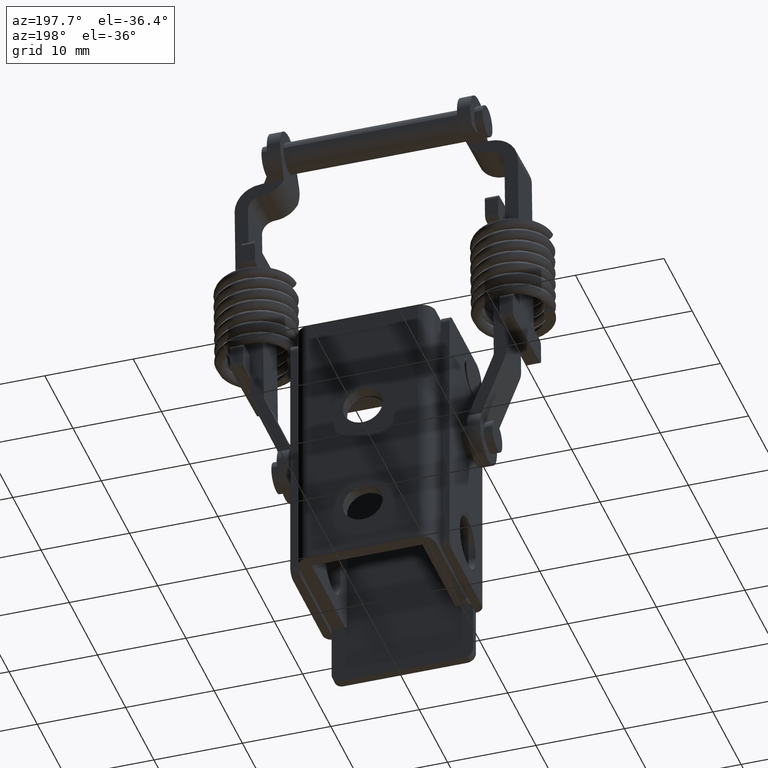
[diagram: clean part render]
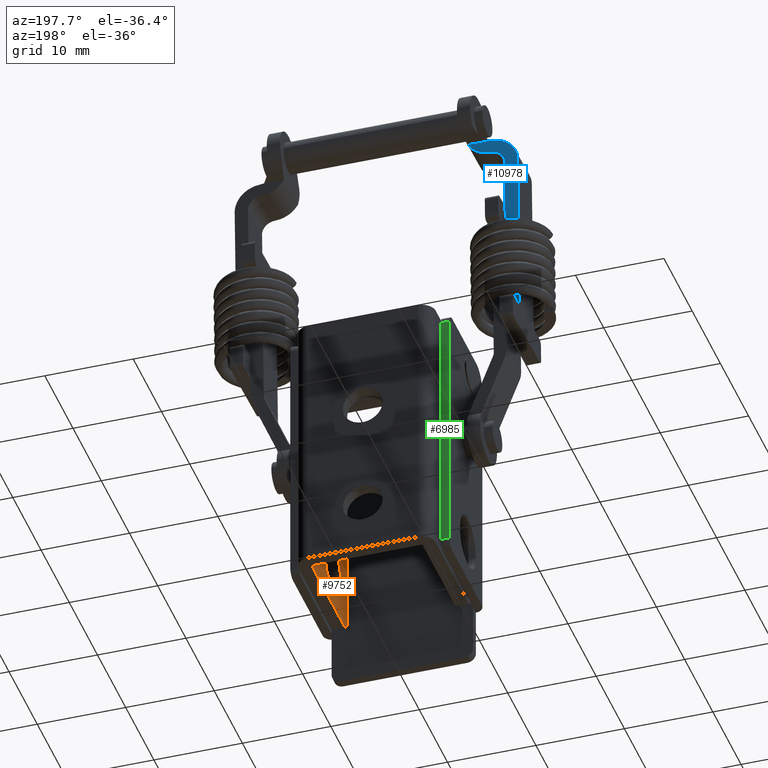
[diagram: same view with three faces highlighted in distinct colors, each labeled with its STEP entity id]
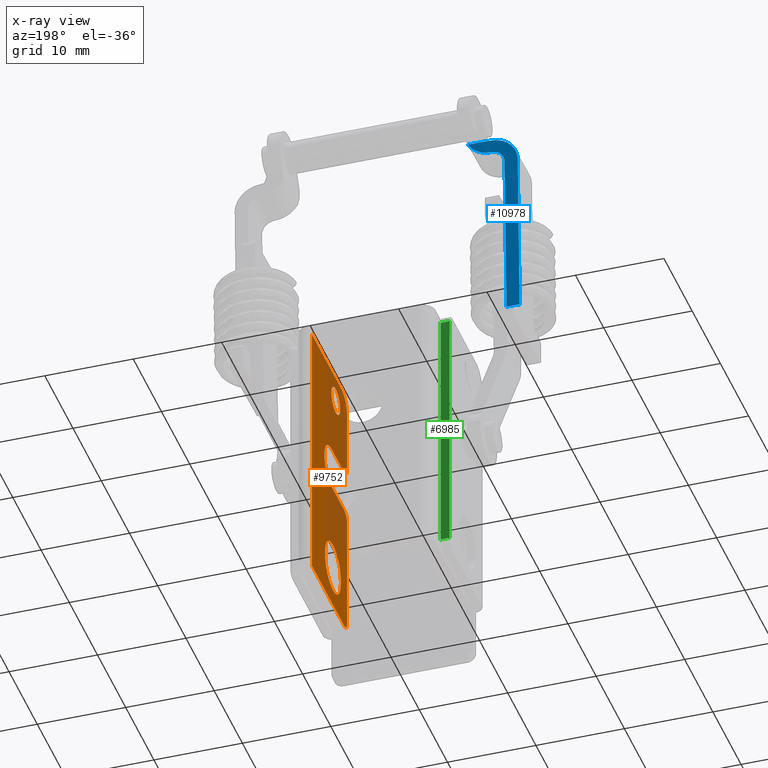
[diagram: x-ray of the same camera — body ghosted, the three highlighted faces saturated]
A machine part, auxiliary view with three faces highlighted in distinct colors.
The next image is the same camera in x-ray (body ghosted, the three faces saturated) — at least one of them is partly hidden behind the body in this view.
Their STEP definitions:

[orange] entity #9752 — the highlighted face is a freeform B-spline surface patch.
#7967=CARTESIAN_POINT('',(6.249999999927042,-8.461987368572737,8.807601596782856));
#7968=VERTEX_POINT('',#7967);
#7969=CARTESIAN_POINT('',(6.249999999927041,-10.0,7.450000000025149));
#7970=VERTEX_POINT('',#7969);
#7971=CARTESIAN_POINT('',(6.249999999927042,-8.461987368572737,8.807601596782856));
#7972=CARTESIAN_POINT('',(6.249999999927040,-8.631817169800423,7.450000000025150));
#7973=CARTESIAN_POINT('',(6.249999999927041,-10.0,7.450000000025149));
#7981=(BOUNDED_CURVE()B_SPLINE_CURVE(2,(#7971,#7972,#7973),.UNSPECIFIED.,.F.,.U.)B_SPLINE_CURVE_WITH_KNOTS((3,3),(0.771473928974771,1.0),.UNSPECIFIED.)CURVE()GEOMETRIC_REPRESENTATION_ITEM()RATIONAL_B_SPLINE_CURVE((0.954005430266821,0.732265053898516,1.0))REPRESENTATION_ITEM(''));
#7982=EDGE_CURVE('',#7968,#7970,#7981,.T.);
#7984=CARTESIAN_POINT('',(6.249999999927041,-11.549940980746349,9.013526130404305));
#7985=VERTEX_POINT('',#7984);
#7986=CARTESIAN_POINT('',(6.249999999927041,-10.0,7.450000000025149));
#7987=CARTESIAN_POINT('',(6.249999999927042,-11.549999999999999,7.450000000025150));
#7988=CARTESIAN_POINT('',(6.249999999927041,-11.550000000000001,9.000000000025150));
#7989=CARTESIAN_POINT('',(6.249999999927041,-11.549999999999995,9.006763194153933));
#7990=CARTESIAN_POINT('',(6.249999999927041,-11.549940980746355,9.013526130404305));
#7998=(BOUNDED_CURVE()B_SPLINE_CURVE(2,(#7986,#7987,#7988,#7989,#7990),.UNSPECIFIED.,.F.,.U.)B_SPLINE_CURVE_WITH_KNOTS((3,2,3),(0.0,0.250000000000000,0.251539894416056),.UNSPECIFIED.)CURVE()GEOMETRIC_REPRESENTATION_ITEM()RATIONAL_B_SPLINE_CURVE((1.0,0.707106781186547,1.0,0.998195901471394,0.996414027912790))REPRESENTATION_ITEM(''));
#7999=EDGE_CURVE('',#7970,#7985,#7998,.T.);
#8070=CARTESIAN_POINT('',(6.249999999927041,-10.0,10.550000000025150));
#8071=VERTEX_POINT('',#8070);
#8072=CARTESIAN_POINT('',(6.249999999927041,-10.0,10.550000000025150));
#8073=CARTESIAN_POINT('',(6.249999999927042,-8.450000000000001,10.550000000025149));
#8074=CARTESIAN_POINT('',(6.249999999927041,-8.450000000000001,9.000000000025150));
#8075=CARTESIAN_POINT('',(6.249999999927041,-8.450000000000001,8.903427362329461));
#8076=CARTESIAN_POINT('',(6.249999999927042,-8.461987368572737,8.807601596782854));
#8084=(BOUNDED_CURVE()B_SPLINE_CURVE(2,(#8072,#8073,#8074,#8075,#8076),.UNSPECIFIED.,.F.,.U.)B_SPLINE_CURVE_WITH_KNOTS((3,2,3),(0.500000000000000,0.750000000000000,0.771473928974770),.UNSPECIFIED.)CURVE()GEOMETRIC_REPRESENTATION_ITEM()RATIONAL_B_SPLINE_CURVE((1.0,0.707106781186547,1.0,0.974841727288032,0.954005430266822))REPRESENTATION_ITEM(''));
#8085=EDGE_CURVE('',#8071,#7968,#8084,.T.);
#8119=CARTESIAN_POINT('',(6.249999999927041,-11.549940980746355,9.013526130404305));
#8120=CARTESIAN_POINT('',(6.249999999927041,-11.536532375715009,10.550000000025149));
#8121=CARTESIAN_POINT('',(6.249999999927041,-10.0,10.550000000025150));
#8129=(BOUNDED_CURVE()B_SPLINE_CURVE(2,(#8119,#8120,#8121),.UNSPECIFIED.,.F.,.U.)B_SPLINE_CURVE_WITH_KNOTS((3,3),(0.251539894416056,0.500000000000000),.UNSPECIFIED.)CURVE()GEOMETRIC_REPRESENTATION_ITEM()RATIONAL_B_SPLINE_CURVE((0.996414027912790,0.708910879715153,1.0))REPRESENTATION_ITEM(''));
#8130=EDGE_CURVE('',#7985,#8071,#8129,.T.);
#8335=CARTESIAN_POINT('',(6.249999999927041,-6.250000000000000,-14.249997936925640));
#8336=VERTEX_POINT('',#8335);
#8337=CARTESIAN_POINT('',(6.249999999927041,-11.750000000000121,-14.249997936925940));
#8338=VERTEX_POINT('',#8337);
#8339=CARTESIAN_POINT('',(6.249999999927041,-6.249999999999999,-14.249997936925640));
#8340=CARTESIAN_POINT('',(6.249999999927041,-6.249999999999998,-16.999997936925642));
#8341=CARTESIAN_POINT('',(6.249999999927041,-9.0,-16.999997936925642));
#8342=CARTESIAN_POINT('',(6.249999999927041,-11.749999999999698,-16.999997936925642));
#8343=CARTESIAN_POINT('',(6.249999999927041,-11.750000000000121,-14.249997936925940));
#8351=(BOUNDED_CURVE()B_SPLINE_CURVE(2,(#8339,#8340,#8341,#8342,#8343),.UNSPECIFIED.,.F.,.U.)B_SPLINE_CURVE_WITH_KNOTS((3,2,3),(0.0,0.500000000000000,1.0),.UNSPECIFIED.)CURVE()GEOMETRIC_REPRESENTATION_ITEM()RATIONAL_B_SPLINE_CURVE((1.0,0.707106781186548,1.0,0.707106781186548,1.0))REPRESENTATION_ITEM(''));
#8352=EDGE_CURVE('',#8336,#8338,#8351,.T.);
#8391=CARTESIAN_POINT('',(6.249999999927041,-11.750000000000000,-13.749997936925640));
#8392=VERTEX_POINT('',#8391);
#8393=CARTESIAN_POINT('',(6.249999999927041,-11.750000000000121,-14.249997936925940));
#8394=CARTESIAN_POINT('',(6.249999999927041,-11.750000000000000,-13.749997936925640));
#8395=QUASI_UNIFORM_CURVE('',1,(#8393,#8394),.UNSPECIFIED.,.F.,.U.);
#8396=EDGE_CURVE('',#8338,#8392,#8395,.T.);
#8432=CARTESIAN_POINT('',(6.249999999927041,-6.250000000000000,-13.749997936925640));
#8433=VERTEX_POINT('',#8432);
#8434=CARTESIAN_POINT('',(6.249999999927041,-11.750000000000000,-13.749997936925640));
#8435=CARTESIAN_POINT('',(6.249999999927041,-11.750000000000002,-10.999997936925642));
#8436=CARTESIAN_POINT('',(6.249999999927041,-9.0,-10.999997936925640));
#8437=CARTESIAN_POINT('',(6.249999999927041,-6.249999999999998,-10.999997936925642));
#8438=CARTESIAN_POINT('',(6.249999999927041,-6.249999999999999,-13.749997936925640));
#8446=(BOUNDED_CURVE()B_SPLINE_CURVE(2,(#8434,#8435,#8436,#8437,#8438),.UNSPECIFIED.,.F.,.U.)B_SPLINE_CURVE_WITH_KNOTS((3,2,3),(0.0,0.500000000000000,1.0),.UNSPECIFIED.)CURVE()GEOMETRIC_REPRESENTATION_ITEM()RATIONAL_B_SPLINE_CURVE((1.0,0.707106781186548,1.0,0.707106781186548,1.0))REPRESENTATION_ITEM(''));
#8447=EDGE_CURVE('',#8392,#8433,#8446,.T.);
#8480=CARTESIAN_POINT('',(6.249999999927041,-6.250000000000000,-13.749997936925640));
#8481=CARTESIAN_POINT('',(6.249999999927041,-6.250000000000000,-14.249997936925640));
#8482=QUASI_UNIFORM_CURVE('',1,(#8480,#8481),.UNSPECIFIED.,.F.,.U.);
#8483=EDGE_CURVE('',#8433,#8336,#8482,.T.);
#8870=CARTESIAN_POINT('',(6.249999999927010,-13.0,-18.999997936926700));
#8871=VERTEX_POINT('',#8870);
#8872=CARTESIAN_POINT('',(6.249999999927010,-14.0,-17.999999999983849));
#8873=VERTEX_POINT('',#8872);
#8874=CARTESIAN_POINT('',(6.249999999927010,-13.0,-18.999997936926700));
#8875=CARTESIAN_POINT('',(6.249999999927010,-13.999999999999998,-18.999998968455284));
#8876=CARTESIAN_POINT('',(6.249999999927010,-14.0,-17.999999999983849));
#8884=(BOUNDED_CURVE()B_SPLINE_CURVE(2,(#8874,#8875,#8876),.UNSPECIFIED.,.F.,.U.)CURVE()GEOMETRIC_REPRESENTATION_ITEM()QUASI_UNIFORM_CURVE()RATIONAL_B_SPLINE_CURVE((1.0,0.707106781186548,1.0))REPRESENTATION_ITEM(''));
#8885=EDGE_CURVE('',#8871,#8873,#8884,.T.);
#8931=CARTESIAN_POINT('',(6.249999999927010,-13.0,1.500000000024955));
#8932=VERTEX_POINT('',#8931);
#8933=CARTESIAN_POINT('',(6.249999999927010,-14.0,2.500000000024955));
#8934=VERTEX_POINT('',#8933);
#8935=CARTESIAN_POINT('',(6.249999999927041,-13.0,1.500000000024955));
#8936=CARTESIAN_POINT('',(6.249999999927041,-13.999999999999998,1.500000000024955));
#8937=CARTESIAN_POINT('',(6.249999999927041,-14.0,2.500000000024955));
#8945=(BOUNDED_CURVE()B_SPLINE_CURVE(2,(#8935,#8936,#8937),.UNSPECIFIED.,.F.,.U.)CURVE()GEOMETRIC_REPRESENTATION_ITEM()QUASI_UNIFORM_CURVE()RATIONAL_B_SPLINE_CURVE((1.0,0.707106781186548,1.0))REPRESENTATION_ITEM(''));
#8946=EDGE_CURVE('',#8932,#8934,#8945,.T.);
#8992=CARTESIAN_POINT('',(6.249999999927010,-14.0,-4.499999999975045));
#8993=VERTEX_POINT('',#8992);
#8994=CARTESIAN_POINT('',(6.249999999927010,-13.0,-3.499999999975045));
#8995=VERTEX_POINT('',#8994);
#8996=CARTESIAN_POINT('',(6.249999999927041,-14.0,-4.499999999975045));
#8997=CARTESIAN_POINT('',(6.249999999927041,-13.999999999999998,-3.499999999975045));
#8998=CARTESIAN_POINT('',(6.249999999927041,-13.0,-3.499999999975045));
#9006=(BOUNDED_CURVE()B_SPLINE_CURVE(2,(#8996,#8997,#8998),.UNSPECIFIED.,.F.,.U.)CURVE()GEOMETRIC_REPRESENTATION_ITEM()QUASI_UNIFORM_CURVE()RATIONAL_B_SPLINE_CURVE((1.0,0.707106781186548,1.0))REPRESENTATION_ITEM(''));
#9007=EDGE_CURVE('',#8993,#8995,#9006,.T.);
#9236=CARTESIAN_POINT('',(6.249999999927010,-14.0,10.000000000016181));
#9237=VERTEX_POINT('',#9236);
#9238=CARTESIAN_POINT('',(6.249999999927010,-12.0,12.000002063073159));
#9239=VERTEX_POINT('',#9238);
#9240=CARTESIAN_POINT('',(6.249999999927010,-14.0,10.000000000016181));
#9241=CARTESIAN_POINT('',(6.249999999927010,-13.999999999999998,12.000001031544672));
#9242=CARTESIAN_POINT('',(6.249999999927010,-12.0,12.000002063073159));
#9250=(BOUNDED_CURVE()B_SPLINE_CURVE(2,(#9240,#9241,#9242),.UNSPECIFIED.,.F.,.U.)CURVE()GEOMETRIC_REPRESENTATION_ITEM()QUASI_UNIFORM_CURVE()RATIONAL_B_SPLINE_CURVE((1.0,0.707106781186548,1.0))REPRESENTATION_ITEM(''));
#9251=EDGE_CURVE('',#9237,#9239,#9250,.T.);
#9441=CARTESIAN_POINT('',(6.249999999927041,-8.499999999999831,-3.499999999974750));
#9442=VERTEX_POINT('',#9441);
#9443=CARTESIAN_POINT('',(6.249999999927041,-8.499999999999831,-3.499999999974750));
#9444=CARTESIAN_POINT('',(6.249999999927010,-13.0,-3.499999999975045));
#9445=QUASI_UNIFORM_CURVE('',1,(#9443,#9444),.UNSPECIFIED.,.F.,.U.);
#9446=EDGE_CURVE('',#9442,#8995,#9445,.T.);
#9501=CARTESIAN_POINT('',(6.249999999927041,-8.504542080552580,1.500000000025255));
#9502=VERTEX_POINT('',#9501);
#9508=CARTESIAN_POINT('',(6.249999999927041,-8.499999999999831,-3.499999999974750));
#9509=CARTESIAN_POINT('',(6.249999999927041,-7.055613607613158,-3.499999999974748));
#9510=CARTESIAN_POINT('',(6.249999999927041,-6.334178087124111,-2.248687552866123));
#9511=CARTESIAN_POINT('',(6.249999999927041,-5.612742566635067,-0.997375105757498));
#9512=CARTESIAN_POINT('',(6.249999999927041,-6.336450319335711,0.252624549919759));
#9513=CARTESIAN_POINT('',(6.249999999927041,-7.060158072036358,1.502624205597015));
#9514=CARTESIAN_POINT('',(6.249999999927041,-8.504542080552580,1.500000000025253));
#9522=(BOUNDED_CURVE()B_SPLINE_CURVE(2,(#9508,#9509,#9510,#9511,#9512,#9513,#9514),.UNSPECIFIED.,.F.,.U.)B_SPLINE_CURVE_WITH_KNOTS((3,2,2,3),(0.0,0.333333333333333,0.666666666666667,1.0),.UNSPECIFIED.)CURVE()GEOMETRIC_REPRESENTATION_ITEM()RATIONAL_B_SPLINE_CURVE((1.0,0.865873961439928,1.0,0.865873961439928,1.0,0.865873961439928,1.0))REPRESENTATION_ITEM(''));
#9523=EDGE_CURVE('',#9442,#9502,#9522,.T.);
#9540=CARTESIAN_POINT('',(6.249999999927010,-13.0,1.500000000024955));
#9541=CARTESIAN_POINT('',(6.249999999927041,-8.504542080552580,1.500000000025255));
#9542=QUASI_UNIFORM_CURVE('',1,(#9540,#9541),.UNSPECIFIED.,.F.,.U.);
#9543=EDGE_CURVE('',#8932,#9502,#9542,.T.);
#9554=CARTESIAN_POINT('',(6.249999999927010,-14.0,10.000000000016181));
#9555=CARTESIAN_POINT('',(6.249999999927010,-14.0,2.500000000024955));
#9556=QUASI_UNIFORM_CURVE('',1,(#9554,#9555),.UNSPECIFIED.,.F.,.U.);
#9557=EDGE_CURVE('',#9237,#8934,#9556,.T.);
#9580=CARTESIAN_POINT('',(6.249999999927010,-14.0,-4.499999999975045));
#9581=CARTESIAN_POINT('',(6.249999999927010,-14.0,-17.999999999983849));
#9582=QUASI_UNIFORM_CURVE('',1,(#9580,#9581),.UNSPECIFIED.,.F.,.U.);
#9583=EDGE_CURVE('',#8993,#8873,#9582,.T.);
#9606=CARTESIAN_POINT('',(6.249999999927010,-1.499999999999946,-18.999999999983849));
#9607=VERTEX_POINT('',#9606);
#9608=CARTESIAN_POINT('',(6.249999999927010,-13.0,-18.999997936926700));
#9609=CARTESIAN_POINT('',(6.249999999927010,-1.499999999999946,-18.999999999983849));
#9610=QUASI_UNIFORM_CURVE('',1,(#9608,#9609),.UNSPECIFIED.,.F.,.U.);
#9611=EDGE_CURVE('',#8871,#9607,#9610,.T.);
#9665=CARTESIAN_POINT('',(6.249999999927010,-1.499999999999946,12.000000000016181));
#9666=VERTEX_POINT('',#9665);
#9672=CARTESIAN_POINT('',(6.249999999927010,-1.499999999999946,12.000000000016181));
#9673=CARTESIAN_POINT('',(6.249999999927010,-12.0,12.000002063073159));
#9674=QUASI_UNIFORM_CURVE('',1,(#9672,#9673),.UNSPECIFIED.,.F.,.U.);
#9675=EDGE_CURVE('',#9666,#9239,#9674,.T.);
#9717=CARTESIAN_POINT('',(6.249999999927010,-14.624374975772580,-20.548450042949529));
#9718=CARTESIAN_POINT('',(6.249999999927010,-0.875624688951244,-20.548450042949529));
#9719=CARTESIAN_POINT('',(6.249999999927010,-14.624374975772580,13.548452937523690));
#9720=CARTESIAN_POINT('',(6.249999999927010,-0.875624688951244,13.548452937523690));
#9721=B_SPLINE_SURFACE_WITH_KNOTS('',1,1,((#9717,#9719),(#9718,#9720)),.UNSPECIFIED.,.F.,.F.,.U.,(2,2),(2,2),(0.0,13.748750286821339),(0.0,34.096902980473217),.UNSPECIFIED.);
#9722=ORIENTED_EDGE('',*,*,#9583,.F.);
#9723=ORIENTED_EDGE('',*,*,#9007,.T.);
#9724=ORIENTED_EDGE('',*,*,#9446,.F.);
#9725=ORIENTED_EDGE('',*,*,#9523,.T.);
#9726=ORIENTED_EDGE('',*,*,#9543,.F.);
#9727=ORIENTED_EDGE('',*,*,#8946,.T.);
#9728=ORIENTED_EDGE('',*,*,#9557,.F.);
#9729=ORIENTED_EDGE('',*,*,#9251,.T.);
#9730=ORIENTED_EDGE('',*,*,#9675,.F.);
#9731=CARTESIAN_POINT('',(6.249999999927010,-1.499999999999946,-18.999999999983849));
#9732=CARTESIAN_POINT('',(6.249999999927010,-1.499999999999946,12.000000000016181));
#9733=QUASI_UNIFORM_CURVE('',1,(#9731,#9732),.UNSPECIFIED.,.F.,.U.);
#9734=EDGE_CURVE('',#9607,#9666,#9733,.T.);
#9735=ORIENTED_EDGE('',*,*,#9734,.F.);
#9736=ORIENTED_EDGE('',*,*,#9611,.F.);
#9737=ORIENTED_EDGE('',*,*,#8885,.T.);
#9738=EDGE_LOOP('',(#9722,#9723,#9724,#9725,#9726,#9727,#9728,#9729,#9730,#9735,#9736,#9737));
#9739=FACE_OUTER_BOUND('',#9738,.T.);
#9740=ORIENTED_EDGE('',*,*,#8483,.F.);
#9741=ORIENTED_EDGE('',*,*,#8447,.F.);
#9742=ORIENTED_EDGE('',*,*,#8396,.F.);
#9743=ORIENTED_EDGE('',*,*,#8352,.F.);
#9744=EDGE_LOOP('',(#9740,#9741,#9742,#9743));
#9745=FACE_BOUND('',#9744,.T.);
#9746=ORIENTED_EDGE('',*,*,#7999,.F.);
#9747=ORIENTED_EDGE('',*,*,#7982,.F.);
#9748=ORIENTED_EDGE('',*,*,#8085,.F.);
#9749=ORIENTED_EDGE('',*,*,#8130,.F.);
#9750=EDGE_LOOP('',(#9746,#9747,#9748,#9749));
#9751=FACE_BOUND('',#9750,.T.);
#9752=ADVANCED_FACE('',(#9739,#9745,#9751),#9721,.F.);

[blue] entity #10978 — the highlighted face is a freeform B-spline surface patch.
#10123=CARTESIAN_POINT('',(-12.999999999973021,-4.505187885589310,35.750456453793653));
#10124=VERTEX_POINT('',#10123);
#10130=CARTESIAN_POINT('',(-15.999999999961300,-4.505187885590150,32.750456453793653));
#10131=VERTEX_POINT('',#10130);
#10132=CARTESIAN_POINT('',(-15.999999999961300,-4.505187885590150,32.750456453793653));
#10133=CARTESIAN_POINT('',(-15.999999999961302,-4.505187885589310,35.750456453781929));
#10134=CARTESIAN_POINT('',(-12.999999999973021,-4.505187885589310,35.750456453793653));
#10142=(BOUNDED_CURVE()B_SPLINE_CURVE(2,(#10132,#10133,#10134),.UNSPECIFIED.,.F.,.U.)CURVE()GEOMETRIC_REPRESENTATION_ITEM()QUASI_UNIFORM_CURVE()RATIONAL_B_SPLINE_CURVE((1.0,0.707106781187929,1.0))REPRESENTATION_ITEM(''));
#10143=EDGE_CURVE('',#10131,#10124,#10142,.T.);
#10184=CARTESIAN_POINT('',(-12.999999999961259,-4.505187885589730,34.250456453794349));
#10185=VERTEX_POINT('',#10184);
#10191=CARTESIAN_POINT('',(-10.378145756380620,-4.505187885589290,35.792416562242401));
#10192=VERTEX_POINT('',#10191);
#10193=CARTESIAN_POINT('',(-10.378145756380620,-4.505187885589290,35.792416562242401));
#10194=CARTESIAN_POINT('',(-11.235645502903068,-4.505187885589730,34.250456453794349));
#10195=CARTESIAN_POINT('',(-12.999999999961259,-4.505187885589730,34.250456453794349));
#10203=(BOUNDED_CURVE()B_SPLINE_CURVE(2,(#10193,#10194,#10195),.UNSPECIFIED.,.F.,.U.)CURVE()GEOMETRIC_REPRESENTATION_ITEM()QUASI_UNIFORM_CURVE()RATIONAL_B_SPLINE_CURVE((1.0,0.861978334177828,1.0))REPRESENTATION_ITEM(''));
#10204=EDGE_CURVE('',#10192,#10185,#10203,.T.);
#10290=CARTESIAN_POINT('',(-12.647693777142139,-4.505187885589290,35.792416562242401));
#10291=VERTEX_POINT('',#10290);
#10315=CARTESIAN_POINT('',(-12.999999999973021,-4.505187885589380,35.750456453793653));
#10316=CARTESIAN_POINT('',(-12.821348138057406,-4.505187885589380,35.750456453793646));
#10317=CARTESIAN_POINT('',(-12.647693777142139,-4.505187885589290,35.792416562242401));
#10325=(BOUNDED_CURVE()B_SPLINE_CURVE(2,(#10315,#10316,#10317),.UNSPECIFIED.,.F.,.U.)CURVE()GEOMETRIC_REPRESENTATION_ITEM()QUASI_UNIFORM_CURVE()RATIONAL_B_SPLINE_CURVE((1.0,0.992982022588392,1.0))REPRESENTATION_ITEM(''));
#10326=EDGE_CURVE('',#10124,#10291,#10325,.T.);
#10361=CARTESIAN_POINT('',(-14.499999999961201,-4.505187885590150,32.750456453794357));
#10362=VERTEX_POINT('',#10361);
#10368=CARTESIAN_POINT('',(-12.999999999961259,-4.505187885589760,34.250456453794357));
#10369=CARTESIAN_POINT('',(-14.499999999961267,-4.505187885589759,34.250456453794357));
#10370=CARTESIAN_POINT('',(-14.499999999961259,-4.505187885590180,32.750456453794357));
#10378=(BOUNDED_CURVE()B_SPLINE_CURVE(2,(#10368,#10369,#10370),.UNSPECIFIED.,.F.,.U.)CURVE()GEOMETRIC_REPRESENTATION_ITEM()QUASI_UNIFORM_CURVE()RATIONAL_B_SPLINE_CURVE((1.0,0.707106781186548,1.0))REPRESENTATION_ITEM(''));
#10379=EDGE_CURVE('',#10185,#10362,#10378,.T.);
#10685=CARTESIAN_POINT('',(-14.499999999961201,-4.505187885595470,13.750456453792220));
#10686=VERTEX_POINT('',#10685);
#10687=CARTESIAN_POINT('',(-14.499999999961201,-4.505187885595470,13.750456453792220));
#10688=CARTESIAN_POINT('',(-14.499999999961201,-4.505187885590150,32.750456453794357));
#10689=QUASI_UNIFORM_CURVE('',1,(#10687,#10688),.UNSPECIFIED.,.F.,.U.);
#10690=EDGE_CURVE('',#10686,#10362,#10689,.T.);
#10778=CARTESIAN_POINT('',(-15.999999999961251,-4.505187885595470,13.750456453792220));
#10779=VERTEX_POINT('',#10778);
#10785=CARTESIAN_POINT('',(-14.499999999961201,-4.505187885595470,13.750456453792220));
#10786=CARTESIAN_POINT('',(-15.999999999961251,-4.505187885595470,13.750456453792220));
#10787=QUASI_UNIFORM_CURVE('',1,(#10785,#10786),.UNSPECIFIED.,.F.,.U.);
#10788=EDGE_CURVE('',#10686,#10779,#10787,.T.);
#10893=CARTESIAN_POINT('',(-15.999999999961251,-4.505187885595470,13.750456453792220));
#10894=CARTESIAN_POINT('',(-15.999999999961300,-4.505187885590150,32.750456453793653));
#10895=QUASI_UNIFORM_CURVE('',1,(#10893,#10894),.UNSPECIFIED.,.F.,.U.);
#10896=EDGE_CURVE('',#10779,#10131,#10895,.T.);
#10952=CARTESIAN_POINT('',(-10.378145756380620,-4.505187885589290,35.792416562242401));
#10953=CARTESIAN_POINT('',(-12.647693777142139,-4.505187885589290,35.792416562242401));
#10954=QUASI_UNIFORM_CURVE('',1,(#10952,#10953),.UNSPECIFIED.,.F.,.U.);
#10955=EDGE_CURVE('',#10192,#10291,#10954,.T.);
#10963=CARTESIAN_POINT('',(-16.280811588446699,-4.505187885588985,36.893411520531927));
#10964=CARTESIAN_POINT('',(-16.280811588446699,-4.505187885595767,12.649461692573171));
#10965=CARTESIAN_POINT('',(-10.097334419211689,-4.505187885588985,36.893411520531927));
#10966=CARTESIAN_POINT('',(-10.097334419211689,-4.505187885595767,12.649461692573171));
#10967=B_SPLINE_SURFACE_WITH_KNOTS('',1,1,((#10963,#10965),(#10964,#10966)),.UNSPECIFIED.,.F.,.F.,.U.,(2,2),(2,2),(0.0,24.243949827958762),(0.0,6.183477169235010),.UNSPECIFIED.);
#10968=ORIENTED_EDGE('',*,*,#10955,.F.);
#10969=ORIENTED_EDGE('',*,*,#10204,.T.);
#10970=ORIENTED_EDGE('',*,*,#10379,.T.);
#10971=ORIENTED_EDGE('',*,*,#10690,.F.);
#10972=ORIENTED_EDGE('',*,*,#10788,.T.);
#10973=ORIENTED_EDGE('',*,*,#10896,.T.);
#10974=ORIENTED_EDGE('',*,*,#10143,.T.);
#10975=ORIENTED_EDGE('',*,*,#10326,.T.);
#10976=EDGE_LOOP('',(#10968,#10969,#10970,#10971,#10972,#10973,#10974,#10975));
#10977=FACE_OUTER_BOUND('',#10976,.T.);
#10978=ADVANCED_FACE('',(#10977),#10967,.F.);

[green] entity #6985 — the highlighted face is a freeform B-spline surface patch.
#6547=CARTESIAN_POINT('',(-8.999999999950552,-2.500000000000000,11.000002063101160));
#6548=VERTEX_POINT('',#6547);
#6571=CARTESIAN_POINT('',(-7.999999999950439,-2.500000000000000,11.000002063098520));
#6572=VERTEX_POINT('',#6571);
#6586=CARTESIAN_POINT('',(-8.999999999950552,-2.500000000000000,11.000002063101160));
#6587=CARTESIAN_POINT('',(-7.999999999950439,-2.500000000000000,11.000002063098520));
#6588=QUASI_UNIFORM_CURVE('',1,(#6586,#6587),.UNSPECIFIED.,.F.,.U.);
#6589=EDGE_CURVE('',#6548,#6572,#6588,.T.);
#6915=CARTESIAN_POINT('',(-9.000000000027379,-2.500000000000115,-17.999997936903750));
#6916=VERTEX_POINT('',#6915);
#6934=CARTESIAN_POINT('',(-8.000000000027271,-2.500000000000115,-17.999997936906400));
#6935=VERTEX_POINT('',#6934);
#6936=CARTESIAN_POINT('',(-8.000000000027271,-2.500000000000115,-17.999997936906400));
#6937=CARTESIAN_POINT('',(-9.000000000027379,-2.500000000000115,-17.999997936903750));
#6938=QUASI_UNIFORM_CURVE('',1,(#6936,#6937),.UNSPECIFIED.,.F.,.U.);
#6939=EDGE_CURVE('',#6935,#6916,#6938,.T.);
#6966=CARTESIAN_POINT('',(-9.049949998093036,-2.500000000000000,-19.448548152927490));
#6967=CARTESIAN_POINT('',(-9.049949998008527,-2.500000000000000,12.448552797685590));
#6968=CARTESIAN_POINT('',(-7.950049975147206,-2.500000000000000,-19.448548152930400));
#6969=CARTESIAN_POINT('',(-7.950049975062696,-2.500000000000000,12.448552797682670));
#6970=B_SPLINE_SURFACE_WITH_KNOTS('',1,1,((#6966,#6968),(#6967,#6969)),.UNSPECIFIED.,.F.,.F.,.U.,(2,2),(2,2),(0.0,31.897100950613069),(0.041708334948495,0.958291687403247),.UNSPECIFIED.);
#6971=CARTESIAN_POINT('',(-8.999999999950552,-2.500000000000000,11.000002063101160));
#6972=CARTESIAN_POINT('',(-9.000000000027379,-2.500000000000115,-17.999997936903750));
#6973=QUASI_UNIFORM_CURVE('',1,(#6971,#6972),.UNSPECIFIED.,.F.,.U.);
#6974=EDGE_CURVE('',#6548,#6916,#6973,.T.);
#6975=ORIENTED_EDGE('',*,*,#6974,.F.);
#6976=ORIENTED_EDGE('',*,*,#6589,.T.);
#6977=CARTESIAN_POINT('',(-7.999999999950439,-2.500000000000000,11.000002063098520));
#6978=CARTESIAN_POINT('',(-8.000000000027271,-2.500000000000115,-17.999997936906400));
#6979=QUASI_UNIFORM_CURVE('',1,(#6977,#6978),.UNSPECIFIED.,.F.,.U.);
#6980=EDGE_CURVE('',#6572,#6935,#6979,.T.);
#6981=ORIENTED_EDGE('',*,*,#6980,.T.);
#6982=ORIENTED_EDGE('',*,*,#6939,.T.);
#6983=EDGE_LOOP('',(#6975,#6976,#6981,#6982));
#6984=FACE_OUTER_BOUND('',#6983,.T.);
#6985=ADVANCED_FACE('',(#6984),#6970,.T.);